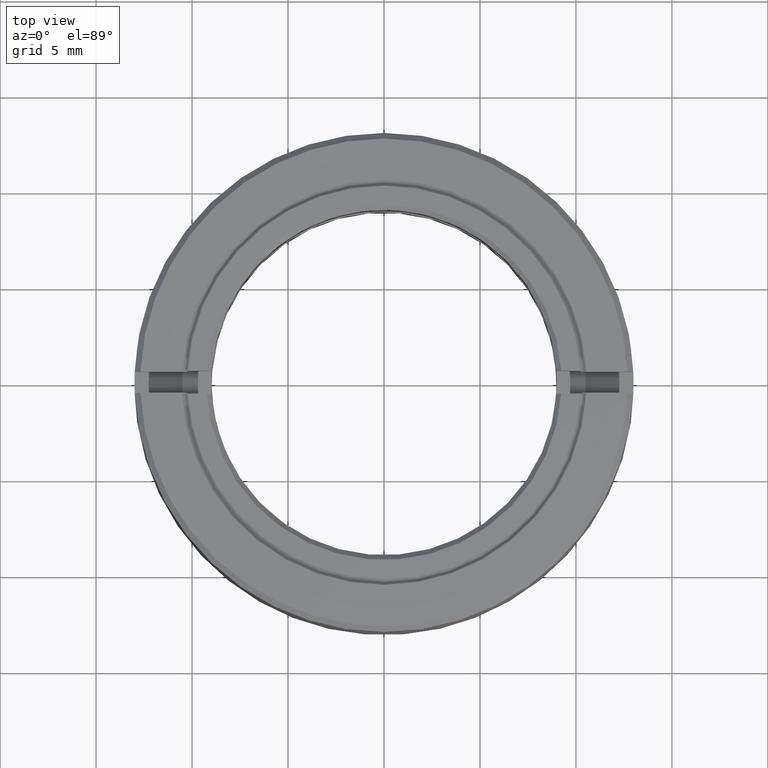
[diagram: clean part render]
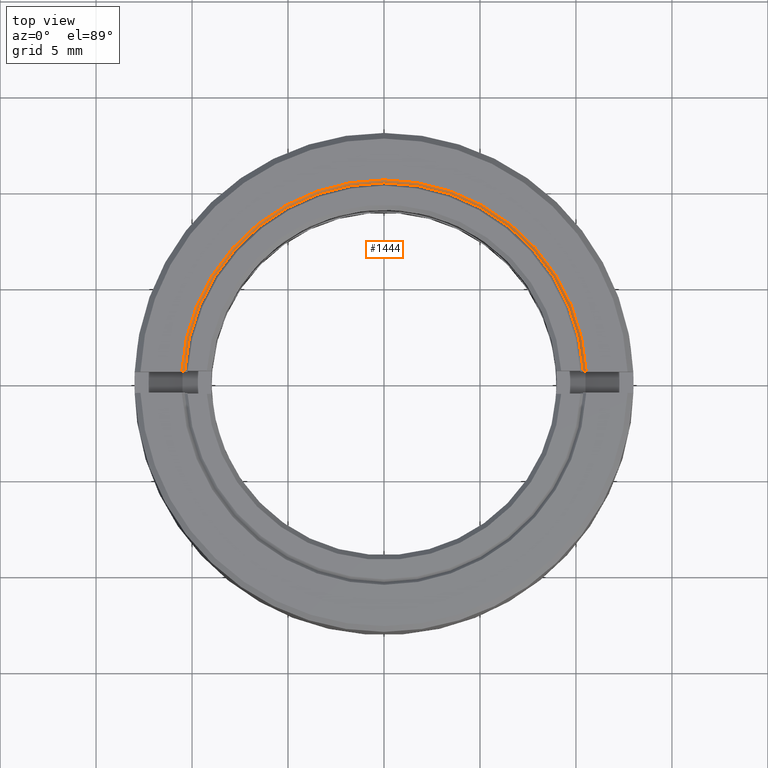
[diagram: same view with one face highlighted and labeled with its STEP entity id]
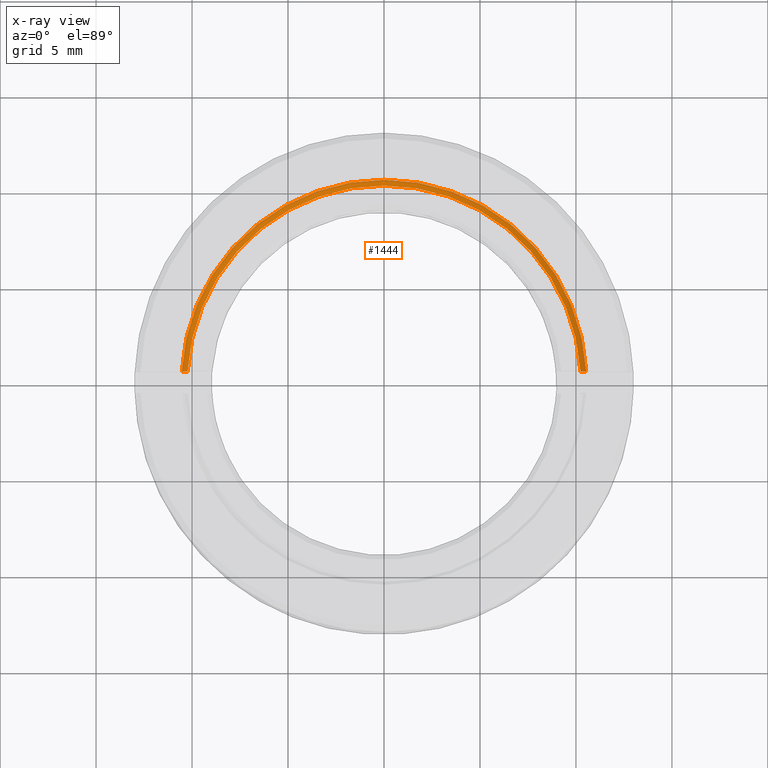
[diagram: x-ray of the same camera — body ghosted, the highlighted face saturated]
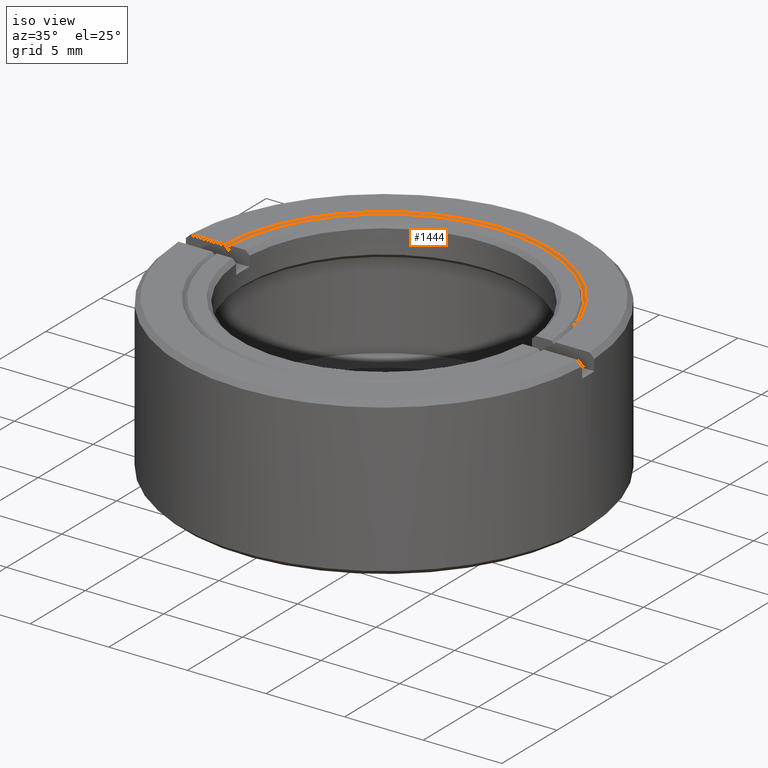
[diagram: same view with one face highlighted and labeled with its STEP entity id]
A machine part, top view. The second image highlights one B-rep face of the part: STEP entity #1444.
The next image is the same camera in x-ray: the body ghosted, the highlighted face saturated — about 0% of this face is hidden behind the body in this view.
A second angle (iso view) of the same face is appended — the face is thin or edge-on in the first view.
In plain terms, the highlighted conical surface has half-angle 45 deg.
Its self-contained STEP definition (entity closure, byte-faithful):
#98 = CARTESIAN_POINT ( 'NONE',  ( 10.43551558462060136, 0.5500000000000000444, 4.899998003038986916 ) ) ;
#102 = VERTEX_POINT ( 'NONE', #1397 ) ;
#124 = ORIENTED_EDGE ( 'NONE', *, *, #1286, .F. ) ;
#139 = DIRECTION ( 'NONE',  ( 1.000000000000000000, 0.000000000000000000, 0.000000000000000000 ) ) ;
#149 = DIRECTION ( 'NONE',  ( 0.000000000000000000, -0.000000000000000000, 1.000000000000000000 ) ) ;
#196 = CARTESIAN_POINT ( 'NONE',  ( 10.53565375285273831, 0.5500000000000000444, 5.000000000000000888 ) ) ;
#199 = CARTESIAN_POINT ( 'NONE',  ( 0.000000000000000000, 0.000000000000000000, 4.700000000000003730 ) ) ;
#213 = CARTESIAN_POINT ( 'NONE',  ( 10.53565375285273831, 0.5500000000000000444, 5.000000000000000888 ) ) ;
#232 = B_SPLINE_CURVE_WITH_KNOTS ( 'NONE', 3,
 ( #213, #98, #567, #332 ),
 .UNSPECIFIED., .F., .F.,
 ( 4, 4 ),
 ( 0.000000000000000000, 0.0004245615022558050914 ),
 .UNSPECIFIED. ) ;
#290 = B_SPLINE_CURVE_WITH_KNOTS ( 'NONE', 3,
 ( #743, #387, #873, #1400 ),
 .UNSPECIFIED., .F., .F.,
 ( 4, 4 ),
 ( 0.000000000000000000, 0.0004245615022558087235 ),
 .UNSPECIFIED. ) ;
#332 = CARTESIAN_POINT ( 'NONE',  ( 10.23523326553919155, 0.5500000000000000444, 4.700000000000006395 ) ) ;
#338 = EDGE_LOOP ( 'NONE', ( #1421, #1063, #468, #124 ) ) ;
#387 = CARTESIAN_POINT ( 'NONE',  ( -10.33537548059110556, 0.5500000000000000444, 4.799997944466751321 ) ) ;
#429 = CIRCLE ( 'NONE', #991, 10.25000000000000000 ) ;
#440 = CARTESIAN_POINT ( 'NONE',  ( 0.000000000000000000, 0.000000000000000000, 5.000000000000002665 ) ) ;
#468 = ORIENTED_EDGE ( 'NONE', *, *, #1334, .F. ) ;
#521 = FACE_OUTER_BOUND ( 'NONE', #338, .T. ) ;
#541 = CARTESIAN_POINT ( 'NONE',  ( 0.000000000000000000, 0.000000000000000000, 5.000000000000002665 ) ) ;
#567 = CARTESIAN_POINT ( 'NONE',  ( 10.33537548059110556, 0.5500000000000000444, 4.799997944466752209 ) ) ;
#637 = AXIS2_PLACEMENT_3D ( 'NONE', #541, #149, #139 ) ;
#645 = DIRECTION ( 'NONE',  ( 1.000000000000000000, 0.000000000000000000, 0.000000000000000000 ) ) ;
#743 = CARTESIAN_POINT ( 'NONE',  ( -10.23523326553918977, 0.5500000000000000444, 4.700000000000004619 ) ) ;
#834 = DIRECTION ( 'NONE',  ( 1.000000000000000000, 0.000000000000000000, 8.462065736472229849E-17 ) ) ;
#873 = CARTESIAN_POINT ( 'NONE',  ( -10.43551558462060136, 0.5500000000000000444, 4.899998003038987804 ) ) ;
#919 = DIRECTION ( 'NONE',  ( -0.000000000000000000, 0.000000000000000000, -1.000000000000000000 ) ) ;
#991 = AXIS2_PLACEMENT_3D ( 'NONE', #199, #1184, #834 ) ;
#1063 = ORIENTED_EDGE ( 'NONE', *, *, #1396, .F. ) ;
#1103 = VERTEX_POINT ( 'NONE', #196 ) ;
#1151 = CONICAL_SURFACE ( 'NONE', #637, 10.55000000000000071, 0.7853981633974526089 ) ;
#1157 = EDGE_CURVE ( 'NONE', #1526, #1103, #1599, .T. ) ;
#1184 = DIRECTION ( 'NONE',  ( 0.000000000000000000, 0.000000000000000000, 1.000000000000000000 ) ) ;
#1286 = EDGE_CURVE ( 'NONE', #1103, #1519, #232, .T. ) ;
#1334 = EDGE_CURVE ( 'NONE', #1519, #102, #429, .T. ) ;
#1377 = CARTESIAN_POINT ( 'NONE',  ( 10.23523326553919155, 0.5500000000000000444, 4.700000000000006395 ) ) ;
#1392 = CARTESIAN_POINT ( 'NONE',  ( -10.53565375285274008, 0.5500000000000000444, 5.000000000000002665 ) ) ;
#1396 = EDGE_CURVE ( 'NONE', #102, #1526, #290, .T. ) ;
#1397 = CARTESIAN_POINT ( 'NONE',  ( -10.23523326553918977, 0.5500000000000000444, 4.700000000000004619 ) ) ;
#1400 = CARTESIAN_POINT ( 'NONE',  ( -10.53565375285274008, 0.5500000000000000444, 5.000000000000002665 ) ) ;
#1413 = AXIS2_PLACEMENT_3D ( 'NONE', #440, #919, #645 ) ;
#1421 = ORIENTED_EDGE ( 'NONE', *, *, #1157, .F. ) ;
#1444 = ADVANCED_FACE ( 'NONE', ( #521 ), #1151, .F. ) ;
#1519 = VERTEX_POINT ( 'NONE', #1377 ) ;
#1526 = VERTEX_POINT ( 'NONE', #1392 ) ;
#1599 = CIRCLE ( 'NONE', #1413, 10.55000000000000071 ) ;